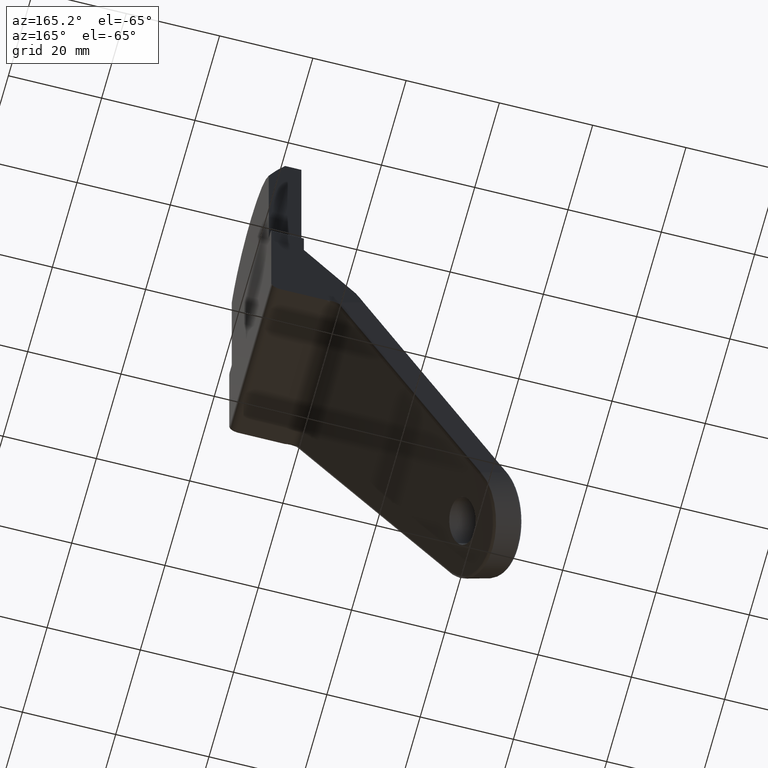
[diagram: clean part render]
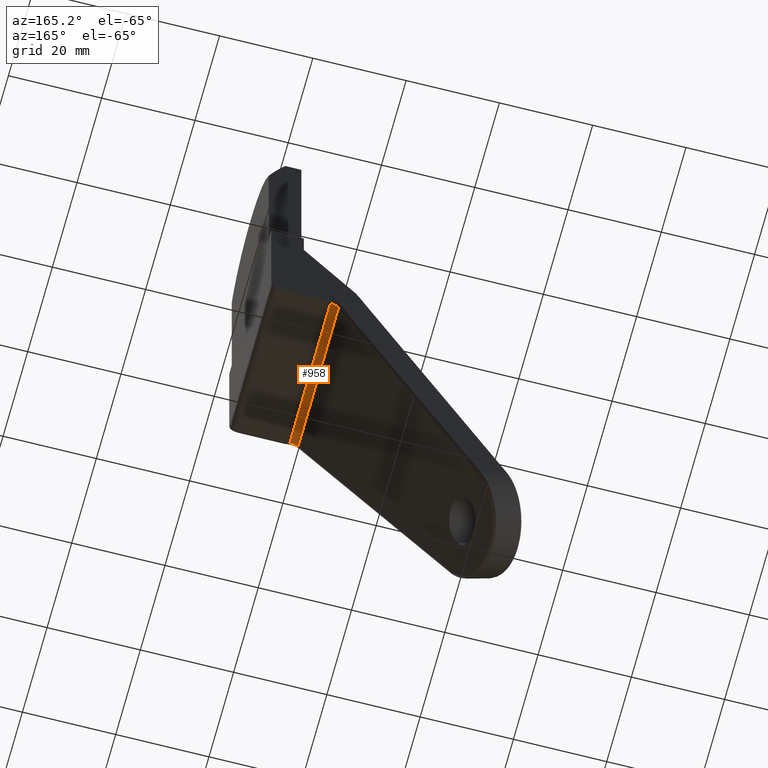
[diagram: same view with one face highlighted and labeled with its STEP entity id]
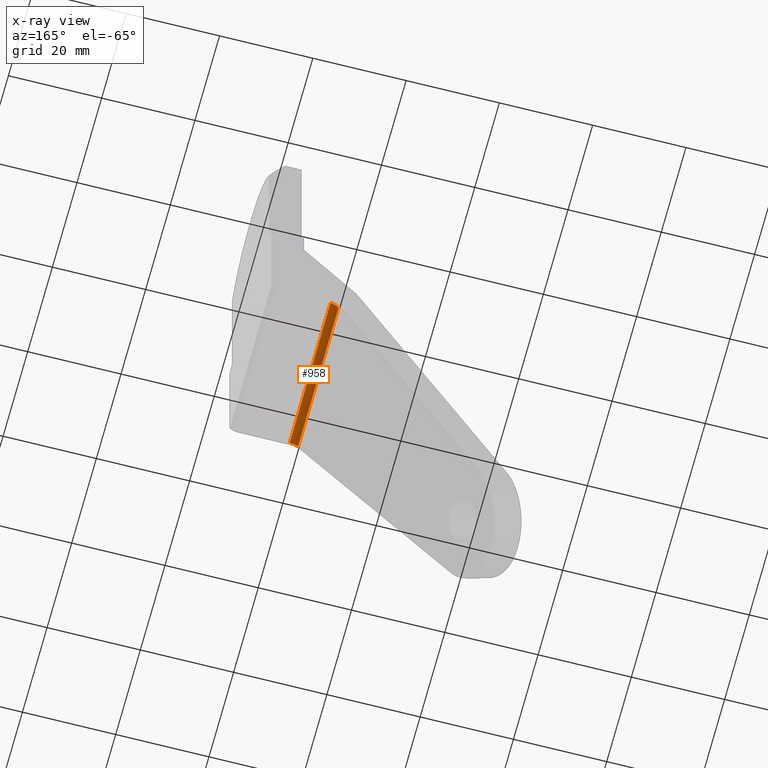
[diagram: x-ray of the same camera — body ghosted, the highlighted face saturated]
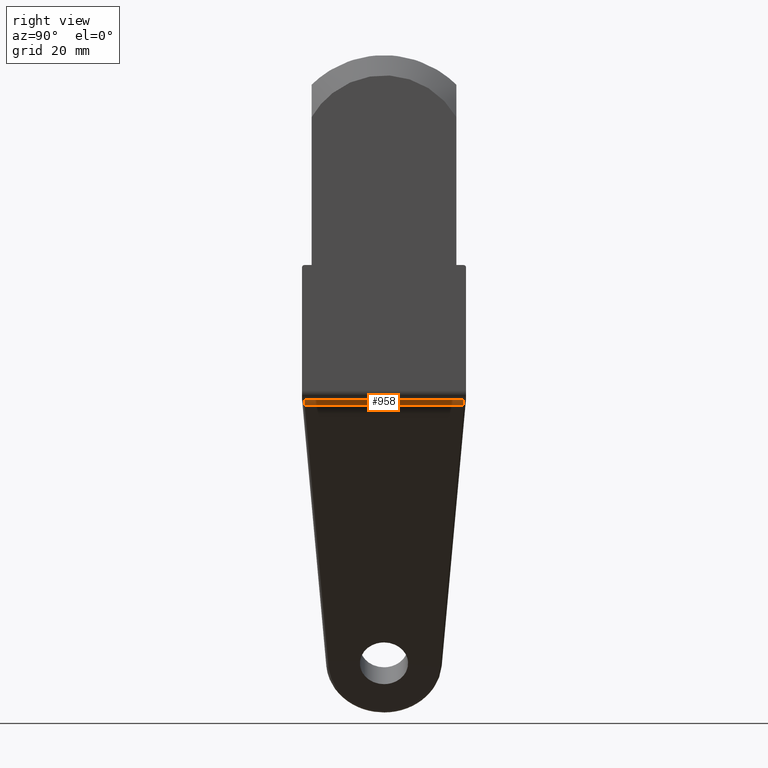
[diagram: same view with one face highlighted and labeled with its STEP entity id]
A machine part, auxiliary view. The second image highlights one B-rep face of the part: STEP entity #958.
The next image is the same camera in x-ray: the body ghosted, the highlighted face saturated — about 0% of this face is hidden behind the body in this view.
A second angle (right view) of the same face is appended — the face is thin or edge-on in the first view.
In plain terms, the highlighted face is a freeform B-spline surface patch.
Its self-contained STEP definition (entity closure, byte-faithful):
#298=CARTESIAN_POINT('',(-5.845299461620400,16.578042360839749,-49.999999999891912));
#299=VERTEX_POINT('',#298);
#313=CARTESIAN_POINT('',(-7.577350269189480,16.407489497099949,-50.999999999892303));
#314=VERTEX_POINT('',#313);
#315=CARTESIAN_POINT('',(-7.577350269189503,16.407489497099949,-50.999999999892289));
#316=CARTESIAN_POINT('',(-6.999999999999915,16.521191406259828,-49.999999999891905));
#317=CARTESIAN_POINT('',(-5.845299461620398,16.578042360839760,-49.999999999891912));
#325=(BOUNDED_CURVE()B_SPLINE_CURVE(2,(#315,#316,#317),.UNSPECIFIED.,.F.,.U.)CURVE()GEOMETRIC_REPRESENTATION_ITEM()QUASI_UNIFORM_CURVE()RATIONAL_B_SPLINE_CURVE((1.0,0.866025403784431,1.0))REPRESENTATION_ITEM(''));
#326=EDGE_CURVE('',#314,#299,#325,.T.);
#527=CARTESIAN_POINT('',(-7.577350269189480,-16.407489497099849,-50.999999999892303));
#528=VERTEX_POINT('',#527);
#673=CARTESIAN_POINT('',(-5.845299461620400,-16.578042360838751,-49.999999999891912));
#674=VERTEX_POINT('',#673);
#675=CARTESIAN_POINT('',(-5.845299461620401,-16.578042360838751,-49.999999999891912));
#676=CARTESIAN_POINT('',(-7.000000211201947,-16.521191395860729,-49.999999999891905));
#677=CARTESIAN_POINT('',(-7.577350269189480,-16.407489497099849,-50.999999999892303));
#685=(BOUNDED_CURVE()B_SPLINE_CURVE(2,(#675,#676,#677),.UNSPECIFIED.,.F.,.U.)CURVE()GEOMETRIC_REPRESENTATION_ITEM()QUASI_UNIFORM_CURVE()RATIONAL_B_SPLINE_CURVE((1.0,0.866025364184009,1.0))REPRESENTATION_ITEM(''));
#686=EDGE_CURVE('',#674,#528,#685,.T.);
#930=CARTESIAN_POINT('',(-5.792945565004651,-17.406944478880710,-50.000685349940788));
#931=CARTESIAN_POINT('',(-5.792945565004651,17.427667031832758,-50.000685349940788));
#932=CARTESIAN_POINT('',(-7.050914385783053,-17.406944478880710,-49.967744277063396));
#933=CARTESIAN_POINT('',(-7.050914385783053,17.427667031832762,-49.967744277063396));
#934=CARTESIAN_POINT('',(-7.625028180946312,-17.406944478880714,-51.087549625566503));
#935=CARTESIAN_POINT('',(-7.625028180946312,17.427667031832762,-51.087549625566503));
#943=(BOUNDED_SURFACE()B_SPLINE_SURFACE(1,2,((#930,#932,#934),(#931,#933,#935)),.UNSPECIFIED.,.F.,.F.,.U.)B_SPLINE_SURFACE_WITH_KNOTS((2,2),(3,3),(0.0,34.834611510713472),(0.0,2.307423795620883),.UNSPECIFIED.)GEOMETRIC_REPRESENTATION_ITEM()RATIONAL_B_SPLINE_SURFACE(((1.0,0.845026327483283,0.996764370657697),(1.0,0.845026327483283,0.996764370657697)))REPRESENTATION_ITEM('')SURFACE());
#944=CARTESIAN_POINT('',(-7.577350269189480,16.407489497099949,-50.999999999892303));
#945=CARTESIAN_POINT('',(-7.577350269189480,-16.407489497099849,-50.999999999892303));
#946=QUASI_UNIFORM_CURVE('',1,(#944,#945),.UNSPECIFIED.,.F.,.U.);
#947=EDGE_CURVE('',#314,#528,#946,.T.);
#948=ORIENTED_EDGE('',*,*,#947,.F.);
#949=ORIENTED_EDGE('',*,*,#326,.T.);
#950=CARTESIAN_POINT('',(-5.845299461620400,-16.578042360838751,-49.999999999891912));
#951=CARTESIAN_POINT('',(-5.845299461620400,16.578042360839749,-49.999999999891912));
#952=QUASI_UNIFORM_CURVE('',1,(#950,#951),.UNSPECIFIED.,.F.,.U.);
#953=EDGE_CURVE('',#674,#299,#952,.T.);
#954=ORIENTED_EDGE('',*,*,#953,.F.);
#955=ORIENTED_EDGE('',*,*,#686,.T.);
#956=EDGE_LOOP('',(#948,#949,#954,#955));
#957=FACE_OUTER_BOUND('',#956,.T.);
#958=ADVANCED_FACE('',(#957),#943,.F.);